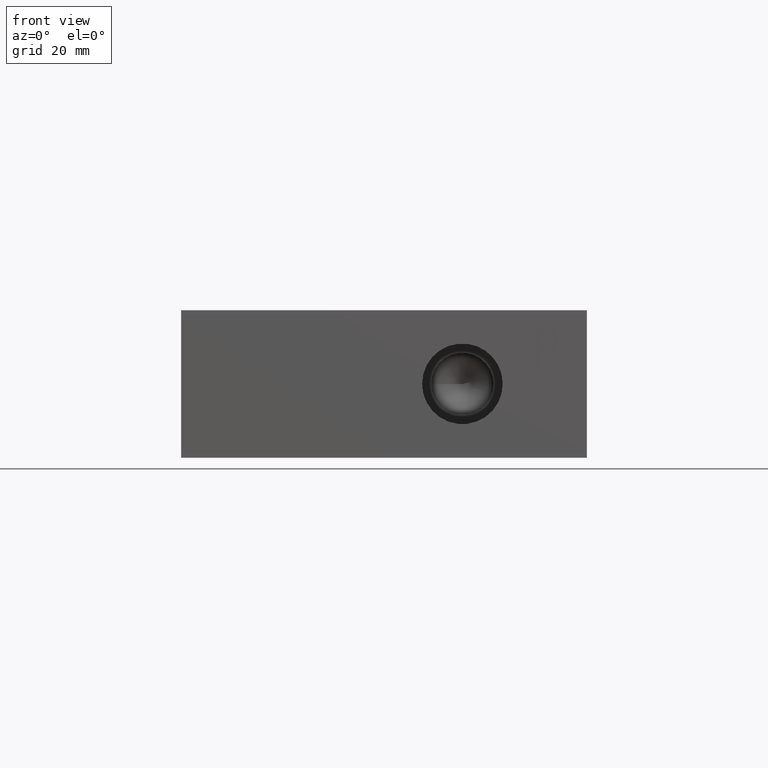
[diagram: clean part render]
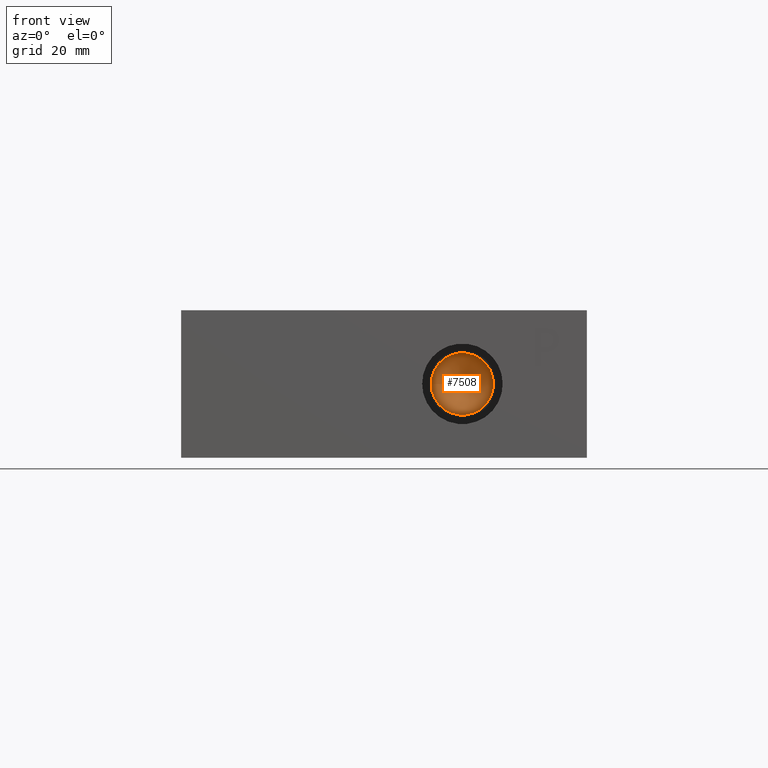
[diagram: same view with one face highlighted and labeled with its STEP entity id]
A machine part, front view. The second image highlights one B-rep face of the part: STEP entity #7508.
In plain terms, the highlighted conical surface has half-angle 60 deg.
Its self-contained STEP definition (entity closure, byte-faithful):
#37=CONICAL_SURFACE('',#7827,2.6797,1.0471975511966);
#51=CIRCLE('',#7828,5.3594);
#52=CIRCLE('',#7829,5.3594);
#779=FACE_OUTER_BOUND('',#1186,.T.);
#1186=EDGE_LOOP('',(#6504,#6505,#6506,#6507));
#2013=LINE('',#12286,#2805);
#2805=VECTOR('',#9221,2.6797);
#3608=VERTEX_POINT('',#12282);
#3609=VERTEX_POINT('',#12283);
#3610=VERTEX_POINT('',#12285);
#4601=EDGE_CURVE('',#3608,#3609,#51,.T.);
#4602=EDGE_CURVE('',#3609,#3610,#2013,.T.);
#4603=EDGE_CURVE('',#3609,#3608,#52,.T.);
#6504=ORIENTED_EDGE('',*,*,#4601,.T.);
#6505=ORIENTED_EDGE('',*,*,#4602,.T.);
#6506=ORIENTED_EDGE('',*,*,#4602,.F.);
#6507=ORIENTED_EDGE('',*,*,#4603,.T.);
#7508=ADVANCED_FACE('',(#779),#37,.F.);
#7827=AXIS2_PLACEMENT_3D('',#12281,#9217,#9218);
#7828=AXIS2_PLACEMENT_3D('',#12284,#9219,#9220);
#7829=AXIS2_PLACEMENT_3D('',#12287,#9222,#9223);
#9217=DIRECTION('center_axis',(0.,-1.,0.));
#9218=DIRECTION('ref_axis',(1.,0.,0.));
#9219=DIRECTION('center_axis',(0.,-1.,0.));
#9220=DIRECTION('ref_axis',(1.,0.,0.));
#9221=DIRECTION('',(0.866025403784439,0.5,1.06057523872491E-16));
#9222=DIRECTION('center_axis',(0.,-1.,0.));
#9223=DIRECTION('ref_axis',(1.,0.,0.));
#12281=CARTESIAN_POINT('Origin',(48.4124,14.2471255163474,12.7));
#12282=CARTESIAN_POINT('',(53.7718,12.7,12.7));
#12283=CARTESIAN_POINT('',(43.053,12.7,12.7));
#12284=CARTESIAN_POINT('Origin',(48.4124,12.7,12.7));
#12285=CARTESIAN_POINT('',(48.4124,15.7942510326949,12.7));
#12286=CARTESIAN_POINT('',(45.7327,14.2471255163474,12.7));
#12287=CARTESIAN_POINT('Origin',(48.4124,12.7,12.7));